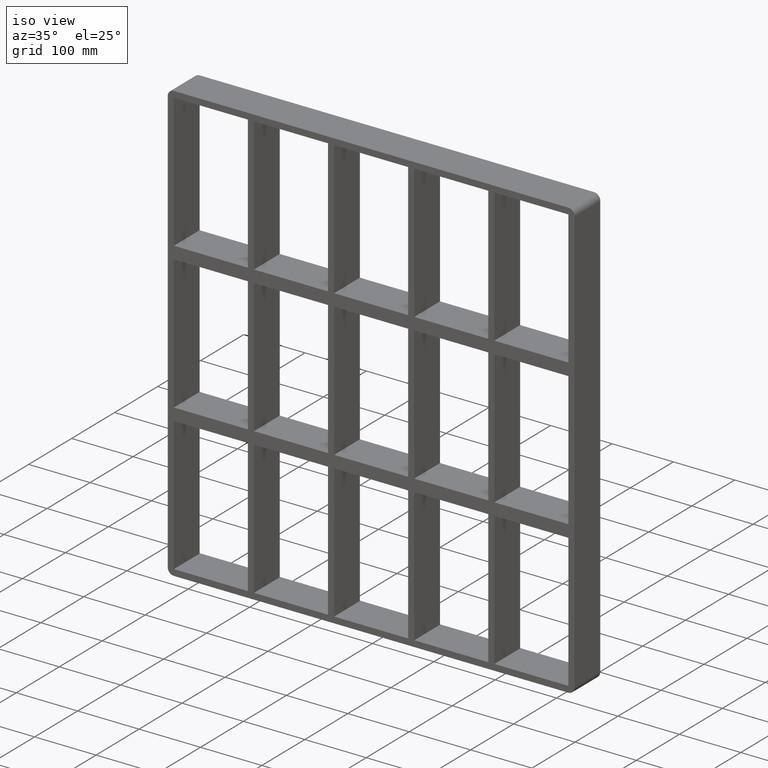
[diagram: clean part render]
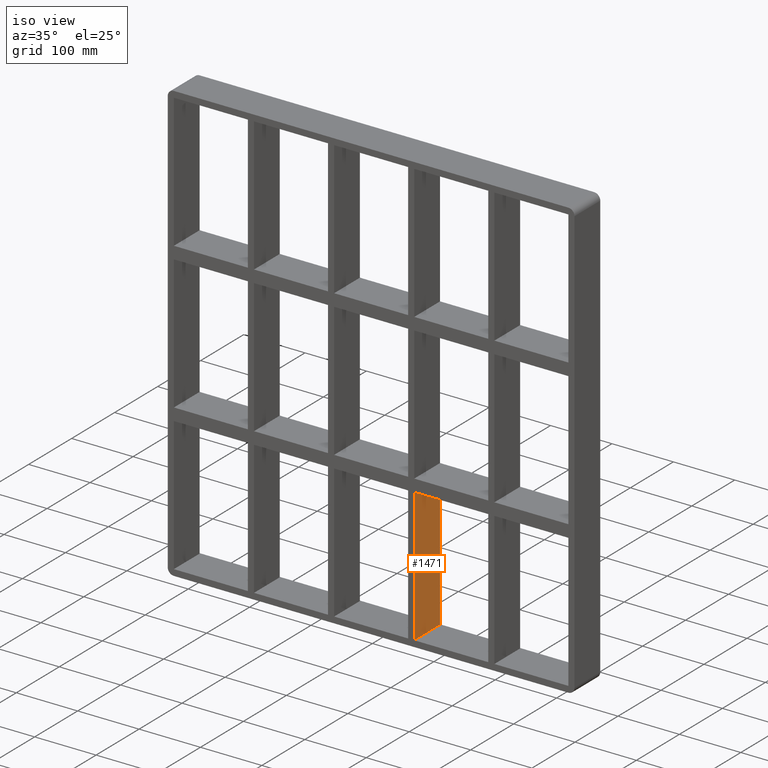
[diagram: same view with one face highlighted and labeled with its STEP entity id]
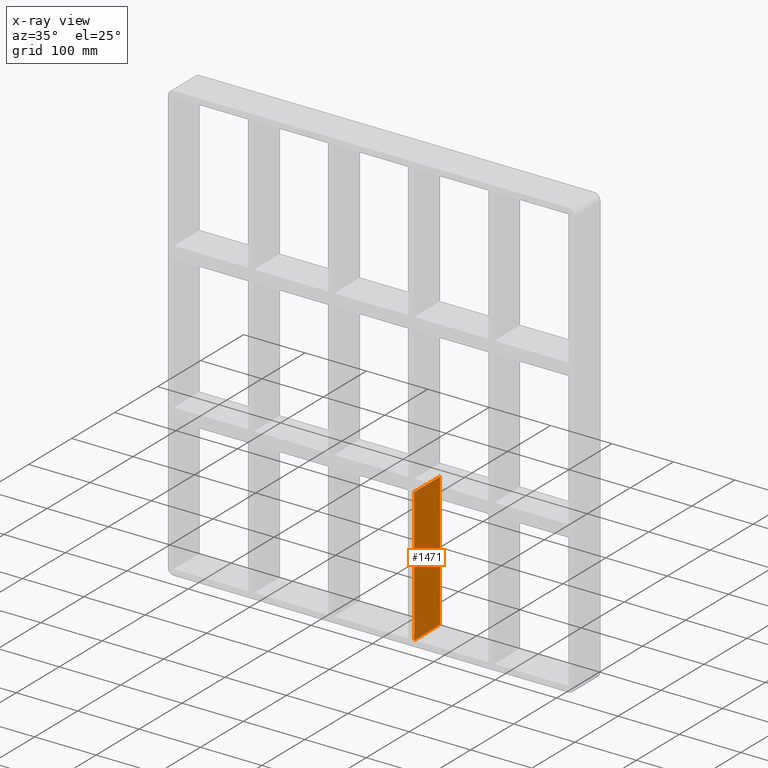
[diagram: x-ray of the same camera — body ghosted, the highlighted face saturated]
A machine part, iso view. The second image highlights one B-rep face of the part: STEP entity #1471.
The next image is the same camera in x-ray: the body ghosted, the highlighted face saturated — about 0% of this face is hidden behind the body in this view.
In plain terms, the highlighted planar face has unit normal (1, 0, 0).
Its self-contained STEP definition (entity closure, byte-faithful):
#1182=CARTESIAN_POINT('',(70.249999999992738,57.0,-129.00000000000938));
#1183=VERTEX_POINT('',#1182);
#1190=CARTESIAN_POINT('',(70.249999999992738,57.0,-346.99999999998403));
#1191=VERTEX_POINT('',#1190);
#1192=CARTESIAN_POINT('',(70.249999999992738,57.0,-129.00000000000932));
#1193=DIRECTION('',(0.0,0.0,-1.0));
#1194=VECTOR('',#1193,217.99999999997465);
#1195=LINE('',#1192,#1194);
#1196=EDGE_CURVE('',#1183,#1191,#1195,.T.);
#1441=CARTESIAN_POINT('',(70.249999999992738,-3.0,347.00000000000011));
#1442=DIRECTION('',(1.0,0.0,0.0));
#1443=DIRECTION('',(0.0,0.0,-1.0));
#1444=AXIS2_PLACEMENT_3D('',#1441,#1442,#1443);
#1445=PLANE('',#1444);
#1446=CARTESIAN_POINT('',(70.249999999992738,-3.0,-129.00000000000938));
#1447=VERTEX_POINT('',#1446);
#1448=CARTESIAN_POINT('',(70.249999999992738,-3.0,-129.00000000000932));
#1449=DIRECTION('',(0.0,1.0,0.0));
#1450=VECTOR('',#1449,60.0);
#1451=LINE('',#1448,#1450);
#1452=EDGE_CURVE('',#1447,#1183,#1451,.T.);
#1453=ORIENTED_EDGE('',*,*,#1452,.F.);
#1454=CARTESIAN_POINT('',(70.249999999992738,-3.0,-346.99999999998408));
#1455=VERTEX_POINT('',#1454);
#1456=CARTESIAN_POINT('',(70.249999999992738,-3.0,-129.00000000000932));
#1457=DIRECTION('',(0.0,0.0,-1.0));
#1458=VECTOR('',#1457,217.99999999997465);
#1459=LINE('',#1456,#1458);
#1460=EDGE_CURVE('',#1447,#1455,#1459,.T.);
#1461=ORIENTED_EDGE('',*,*,#1460,.T.);
#1462=CARTESIAN_POINT('',(70.249999999992738,57.000000000000007,-346.99999999999994));
#1463=DIRECTION('',(0.0,-1.0,0.0));
#1464=VECTOR('',#1463,60.000000000000007);
#1465=LINE('',#1462,#1464);
#1466=EDGE_CURVE('',#1191,#1455,#1465,.T.);
#1467=ORIENTED_EDGE('',*,*,#1466,.F.);
#1468=ORIENTED_EDGE('',*,*,#1196,.F.);
#1469=EDGE_LOOP('',(#1453,#1461,#1467,#1468));
#1470=FACE_OUTER_BOUND('',#1469,.T.);
#1471=ADVANCED_FACE('',(#1470),#1445,.T.);